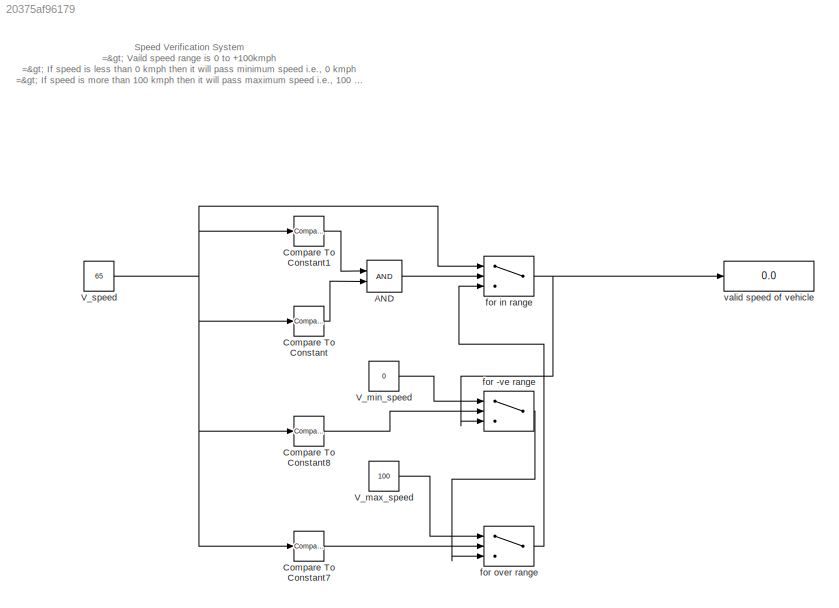
MODEL slx_20375af96179
KIND model
CONFIG AbsTol = auto
CONFIG EnableMultiTasking = off
CONFIG FixedStep = auto
CONFIG MaxStep = auto
CONFIG MinStep = auto
CONFIG RelTol = 1e-3
CONFIG SampleTimeConstraint = Unconstrained
CONFIG SolverName = VariableStepAuto
CONFIG StartTime = 0.0
CONFIG StopTime = inf
BLOCK [Logic] AND
  AllPortsSameDT = off
  IconShape = distinctive
  OutDataTypeStr = boolean
BLOCK [Reference] Compare To Constant  REF=simulink/Logic and Bit
Operations/Compare
To Constant
  SourceBlock = simulink/Logic and Bit\nOperations/Compare\nTo Constant
  SourceType = Compare To Constant
BLOCK [Reference] Compare To Constant1  REF=simulink/Logic and Bit
Operations/Compare
To Constant
  SourceBlock = simulink/Logic and Bit\nOperations/Compare\nTo Constant
  SourceType = Compare To Constant
BLOCK [Reference] Compare To Constant7  REF=simulink/Logic and Bit
Operations/Compare
To Constant
  SourceBlock = simulink/Logic and Bit\nOperations/Compare\nTo Constant
  SourceType = Compare To Constant
BLOCK [Reference] Compare To Constant8  REF=simulink/Logic and Bit
Operations/Compare
To Constant
  SourceBlock = simulink/Logic and Bit\nOperations/Compare\nTo Constant
  SourceType = Compare To Constant
BLOCK [Constant] V_max_speed
  Value = 100
BLOCK [Constant] V_min_speed
  Value = 0
BLOCK [Constant] V_speed
  Value = 65
BLOCK [Switch] for -ve range
  Criteria = u2 > Threshold
  InputSameDT = off
  SaturateOnIntegerOverflow = off
BLOCK [Switch] for in range
  Criteria = u2 > Threshold
  InputSameDT = off
  SaturateOnIntegerOverflow = off
BLOCK [Switch] for over range
  Criteria = u2 > Threshold
  InputSameDT = off
  SaturateOnIntegerOverflow = off
BLOCK [Display] valid speed of vehicle
  Decimation = 1
ANNOTATION (root): Speed Verification System => Vaild speed range is 0 to +100kmph => If speed is less than 0 kmph then it will pass minimum speed i.e., 0 kmph => If speed is more than 100 kmph then it will pass maximum speed i.e., 100 kmph
LINE AND:1 -> for in range:2
LINE Compare To Constant1:1 -> AND:1
LINE Compare To Constant7:1 -> for over range:2
LINE Compare To Constant8:1 -> for -ve range:2
LINE Compare To Constant:1 -> AND:2
LINE V_max_speed:1 -> for over range:1
LINE V_min_speed:1 -> for -ve range:1
NET V_speed:1 -> Compare To Constant1:1, Compare To Constant7:1, Compare To Constant8:1, Compare To Constant:1, for in range:1
LINE for -ve range:1 -> for over range:3
NET for in range:1 -> for -ve range:3, valid speed of vehicle:1
LINE for over range:1 -> for in range:3
note: NET lines group one-source signal fan-out (src -> all destinations, sorted); 1:1 wires keep LINE
